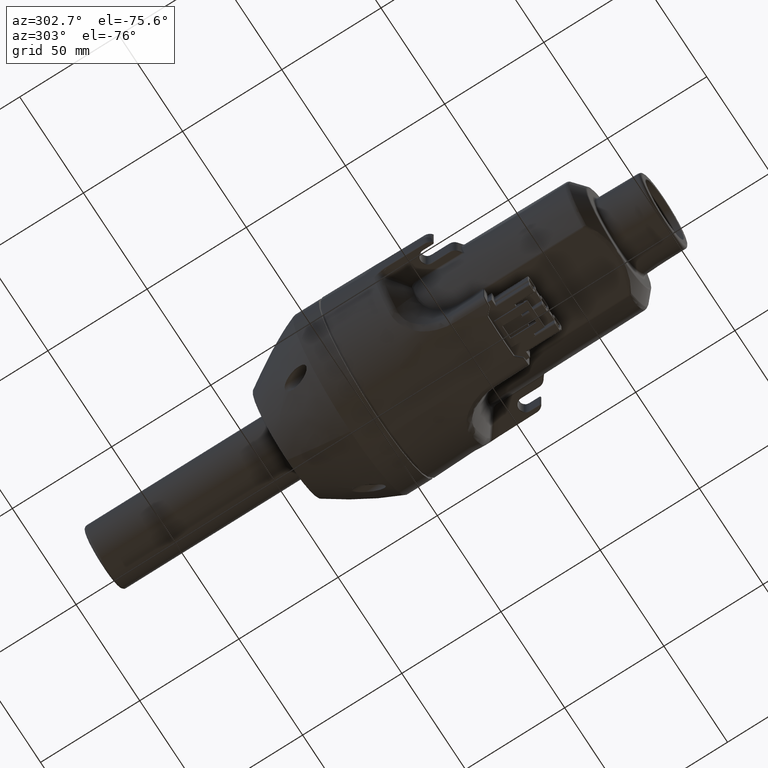
[diagram: clean part render]
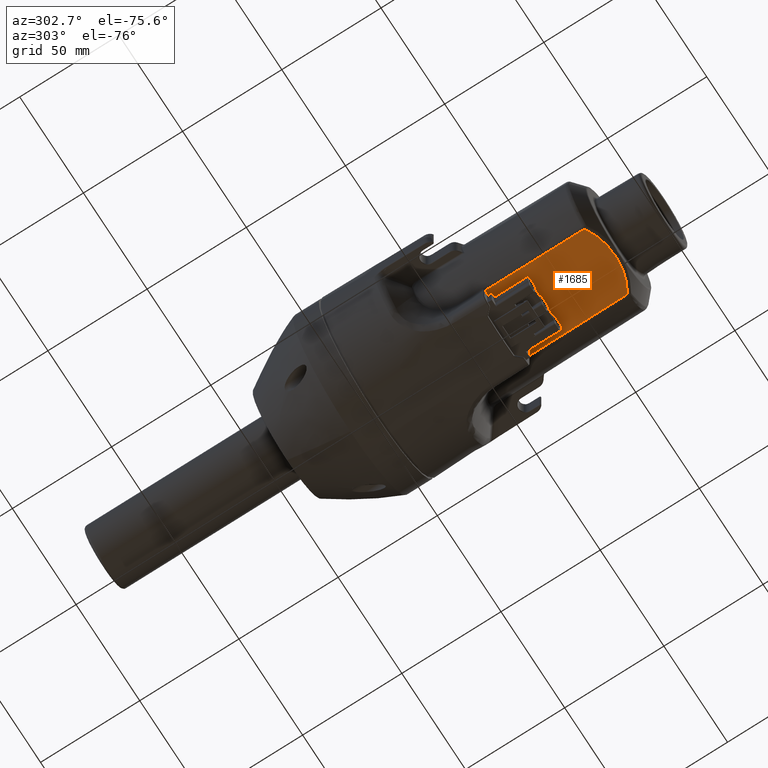
[diagram: same view with one face highlighted and labeled with its STEP entity id]
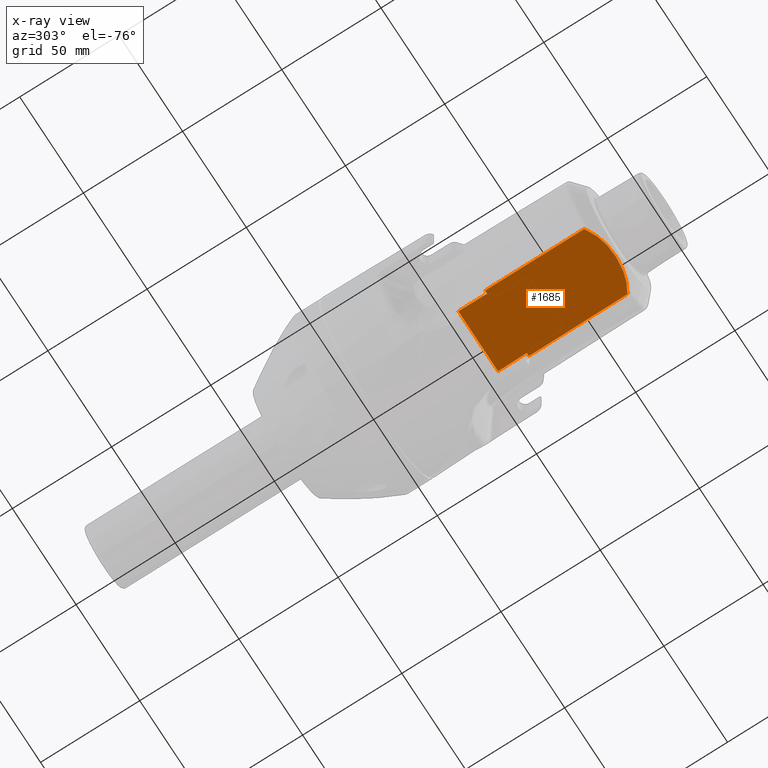
[diagram: x-ray of the same camera — body ghosted, the highlighted face saturated]
A machine part, auxiliary view. The second image highlights one B-rep face of the part: STEP entity #1685.
The next image is the same camera in x-ray: the body ghosted, the highlighted face saturated — about 0% of this face is hidden behind the body in this view.
In plain terms, the highlighted planar face has unit normal (0, -0.0087, -1).
Its self-contained STEP definition (entity closure, byte-faithful):
#1685 = ADVANCED_FACE( '', ( #3583 ), #3584, .T. );
#3583 = FACE_OUTER_BOUND( '', #9095, .T. );
#3584 = PLANE( '', #9096 );
#9095 = EDGE_LOOP( '', ( #15137, #15138, #15139, #15140, #15141, #15142, #15143, #15144, #15145, #15146 ) );
#9096 = AXIS2_PLACEMENT_3D( '', #15147, #15148, #15149 );
#15137 = ORIENTED_EDGE( '', *, *, #18684, .F. );
#15138 = ORIENTED_EDGE( '', *, *, #18685, .F. );
#15139 = ORIENTED_EDGE( '', *, *, #18686, .T. );
#15140 = ORIENTED_EDGE( '', *, *, #18142, .F. );
#15141 = ORIENTED_EDGE( '', *, *, #17085, .F. );
#15142 = ORIENTED_EDGE( '', *, *, #18498, .F. );
#15143 = ORIENTED_EDGE( '', *, *, #18687, .F. );
#15144 = ORIENTED_EDGE( '', *, *, #18272, .F. );
#15145 = ORIENTED_EDGE( '', *, *, #17591, .T. );
#15146 = ORIENTED_EDGE( '', *, *, #18541, .T. );
#15147 = CARTESIAN_POINT( '', ( 4.12001643034690E-011, -65.1999999999932, -26.9999999999682 ) );
#15148 = DIRECTION( '', ( 0.000000000000000, -0.00872653549837275, -0.999961923064171 ) );
#15149 = DIRECTION( '', ( 0.000000000000000, -0.999961923064171, 0.00872653549837275 ) );
#17085 = EDGE_CURVE( '', #19901, #19903, #19904, .T. );
#17591 = EDGE_CURVE( '', #20712, #20710, #20713, .T. );
#18142 = EDGE_CURVE( '', #19903, #21522, #21523, .T. );
#18272 = EDGE_CURVE( '', #20712, #21687, #21688, .T. );
#18498 = EDGE_CURVE( '', #21976, #19901, #21978, .T. );
#18541 = EDGE_CURVE( '', #20710, #22026, #22027, .T. );
#18684 = EDGE_CURVE( '', #22191, #22026, #22192, .T. );
#18685 = EDGE_CURVE( '', #22193, #22191, #22194, .T. );
#18686 = EDGE_CURVE( '', #22193, #21522, #22195, .T. );
#18687 = EDGE_CURVE( '', #21687, #21976, #22196, .T. );
#19901 = VERTEX_POINT( '', #24110 );
#19903 = VERTEX_POINT( '', #24112 );
#19904 = B_SPLINE_CURVE_WITH_KNOTS( '', 3, ( #24113, #24114, #24115, #24116, #24117, #24118, #24119, #24120, #24121, #24122 ), .UNSPECIFIED., .F., .F., ( 4, 1, 1, 1, 1, 1, 1, 4 ), ( 0.000000000000000, 0.250000000000000, 0.375000000000000, 0.500000000000000, 0.625000000000000, 0.687500000000000, 0.750000000000000, 0.999984380602608 ), .UNSPECIFIED. );
#20710 = VERTEX_POINT( '', #25761 );
#20712 = VERTEX_POINT( '', #25764 );
#20713 = LINE( '', #25765, #25766 );
#21522 = VERTEX_POINT( '', #27679 );
#21523 = B_SPLINE_CURVE_WITH_KNOTS( '', 3, ( #27680, #27681, #27682, #27683 ), .UNSPECIFIED., .F., .F., ( 4, 4 ), ( 0.000000000000000, 1.00000000000000 ), .UNSPECIFIED. );
#21687 = VERTEX_POINT( '', #28068 );
#21688 = B_SPLINE_CURVE_WITH_KNOTS( '', 3, ( #28069, #28070, #28071, #28072 ), .UNSPECIFIED., .F., .F., ( 4, 4 ), ( 0.000000000000000, 1.00000000000000 ), .UNSPECIFIED. );
#21976 = VERTEX_POINT( '', #28589 );
#21978 = B_SPLINE_CURVE_WITH_KNOTS( '', 3, ( #28597, #28598, #28599, #28600, #28601, #28602, #28603, #28604, #28605, #28606, #28607, #28608, #28609, #28610, #28611, #28612, #28613, #28614, #28615, #28616, #28617, #28618, #28619, #28620, #28621, #28622, #28623, #28624, #28625, #28626, #28627, #28628, #28629, #28630, #28631, #28632, #28633, #28634, #28635, #28636, #28637, #28638, #28639, #28640, #28641, #28642, #28643 ), .UNSPECIFIED., .F., .F., ( 4, 1, 1, 1, 1, 1, 1, 1, 1, 1, 1, 1, 1, 1, 1, 1, 1, 1, 1, 1, 1, 1, 1, 1, 1, 1, 1, 1, 1, 1, 1, 1, 1, 1, 1, 1, 1, 1, 1, 1, 1, 1, 1, 1, 4 ), ( 0.000000000000000, 0.0227272727272700, 0.0454545454545500, 0.0681818181818200, 0.0909090909090900, 0.113636363636400, 0.136363636363600, 0.159090909090900, 0.181818181818200, 0.204545454545500, 0.227272727272700, 0.250000000000000, 0.272727272727300, 0.295454545454500, 0.318181818181800, 0.340909090909100, 0.363636363636400, 0.386363636363600, 0.409090909090900, 0.431818181818200, 0.454545454545500, 0.477272727272700, 0.500000000000000, 0.522727272727300, 0.545454545454500, 0.568181818181800, 0.590909090909100, 0.613636363636400, 0.636363636363600, 0.659090909090900, 0.681818181818200, 0.704545454545500, 0.727272727272700, 0.750000000000000, 0.772727272727300, 0.795454545454500, 0.818181818181800, 0.840909090909100, 0.863636363636400, 0.886363636363600, 0.909090909090900, 0.931818181818200, 0.954545454545500, 0.977272727272700, 1.00000000000000 ), .UNSPECIFIED. );
#22026 = VERTEX_POINT( '', #28727 );
#22027 = LINE( '', #28728, #28729 );
#22191 = VERTEX_POINT( '', #29033 );
#22192 = LINE( '', #29034, #29035 );
#22193 = VERTEX_POINT( '', #29036 );
#22194 = LINE( '', #29037, #29038 );
#22195 = LINE( '', #29039, #29040 );
#22196 = B_SPLINE_CURVE_WITH_KNOTS( '', 3, ( #29041, #29042, #29043, #29044, #29045, #29046, #29047, #29048, #29049, #29050 ), .UNSPECIFIED., .F., .F., ( 4, 1, 1, 1, 1, 1, 1, 4 ), ( 1.56143924593366E-005, 0.250000000000000, 0.312500000000000, 0.375000000000000, 0.500000000000000, 0.625000000000000, 0.750000000000000, 1.00000000000000 ), .UNSPECIFIED. );
#24110 = CARTESIAN_POINT( '', ( 16.7270094719492, -117.189522202224, -26.5462943131980 ) );
#24112 = CARTESIAN_POINT( '', ( 16.9399724813894, -116.865618072970, -26.5491041563972 ) );
#24113 = CARTESIAN_POINT( '', ( 16.7270094719492, -117.189522202224, -26.5462943131980 ) );
#24114 = CARTESIAN_POINT( '', ( 16.7553626542140, -117.171025636754, -26.5464557302742 ) );
#24115 = CARTESIAN_POINT( '', ( 16.7956023017610, -117.140634775590, -26.5467209451108 ) );
#24116 = CARTESIAN_POINT( '', ( 16.8434427336542, -117.093327589737, -26.5471337945264 ) );
#24117 = CARTESIAN_POINT( '', ( 16.8757673947274, -117.053829879934, -26.5474784682084 ) );
#24118 = CARTESIAN_POINT( '', ( 16.8982079918019, -117.018378726605, -26.5477879007874 ) );
#24119 = CARTESIAN_POINT( '', ( 16.9132178016578, -116.988082617804, -26.5480521786180 ) );
#24120 = CARTESIAN_POINT( '', ( 16.9323524068368, -116.940719517909, -26.5484661961047 ) );
#24121 = CARTESIAN_POINT( '', ( 16.9399580496957, -116.899737363238, -26.5488176193495 ) );
#24122 = CARTESIAN_POINT( '', ( 16.9400515594910, -116.865618387563, -26.5491153705144 ) );
#25761 = CARTESIAN_POINT( '', ( -15.4999999999583, -67.2000000000106, -26.9825462643652 ) );
#25764 = CARTESIAN_POINT( '', ( -17.0745852037331, -67.2000000000106, -26.9825462643652 ) );
#25765 = CARTESIAN_POINT( '', ( -17.0745852037331, -67.2000000000106, -26.9825462643652 ) );
#25766 = VECTOR( '', #30807, 1000.00000000000 );
#27679 = CARTESIAN_POINT( '', ( 17.0745852038144, -67.2000000000106, -26.9825462643652 ) );
#27680 = CARTESIAN_POINT( '', ( 16.9400515598534, -116.865618287189, -26.5491041576569 ) );
#27681 = CARTESIAN_POINT( '', ( 16.9848961078229, -100.310412142534, -26.6935792532330 ) );
#27682 = CARTESIAN_POINT( '', ( 17.0297406557923, -83.7552059978780, -26.8380543486330 ) );
#27683 = CARTESIAN_POINT( '', ( 17.0745852037618, -67.1999998532201, -26.9825294438569 ) );
#28068 = CARTESIAN_POINT( '', ( -16.9400910986781, -116.865618394255, -26.5491041571084 ) );
#28069 = CARTESIAN_POINT( '', ( -17.0745852036790, -67.1999998532201, -26.9825294438569 ) );
#28070 = CARTESIAN_POINT( '', ( -17.0297538353454, -83.7552060335654, -26.8380543482792 ) );
#28071 = CARTESIAN_POINT( '', ( -16.9849224670117, -100.310412213911, -26.6935792526980 ) );
#28072 = CARTESIAN_POINT( '', ( -16.9400910986780, -116.865618394256, -26.5491041571133 ) );
#28589 = CARTESIAN_POINT( '', ( -16.7270233731533, -117.189543509776, -26.5462941267620 ) );
#28597 = CARTESIAN_POINT( '', ( -16.7270233731533, -117.189543509776, -26.5462941267620 ) );
#28598 = CARTESIAN_POINT( '', ( -16.5096679239687, -117.331338081025, -26.5450567042940 ) );
#28599 = CARTESIAN_POINT( '', ( -16.0514990390027, -117.620843899980, -26.5425302259840 ) );
#28600 = CARTESIAN_POINT( '', ( -15.2735684625048, -118.076446676581, -26.5385542405146 ) );
#28601 = CARTESIAN_POINT( '', ( -14.4507736057178, -118.519548242294, -26.5346873518044 ) );
#28602 = CARTESIAN_POINT( '', ( -13.6152650738350, -118.932151169055, -26.5310866206010 ) );
#28603 = CARTESIAN_POINT( '', ( -12.8050747424866, -119.298522971057, -26.5278893423118 ) );
#28604 = CARTESIAN_POINT( '', ( -12.0632487264744, -119.607118974133, -26.5251962657828 ) );
#28605 = CARTESIAN_POINT( '', ( -11.3750718721374, -119.872042445733, -26.5228843136884 ) );
#28606 = CARTESIAN_POINT( '', ( -10.7189998721301, -120.106337994794, -26.5208396473942 ) );
#28607 = CARTESIAN_POINT( '', ( -10.0714476115857, -120.320834129428, -26.5189677680036 ) );
#28608 = CARTESIAN_POINT( '', ( -9.42028768889926, -120.520238004965, -26.5172275967316 ) );
#28609 = CARTESIAN_POINT( '', ( -8.76096200138360, -120.706066678087, -26.5156058944632 ) );
#28610 = CARTESIAN_POINT( '', ( -8.09902090773224, -120.876821163273, -26.5141157426556 ) );
#28611 = CARTESIAN_POINT( '', ( -7.44927815714922, -121.029720042997, -26.5127814143362 ) );
#28612 = CARTESIAN_POINT( '', ( -6.77077957320676, -121.174546114990, -26.5115175363712 ) );
#28613 = CARTESIAN_POINT( '', ( -6.02320827185756, -121.317069063675, -26.5102737574262 ) );
#28614 = CARTESIAN_POINT( '', ( -5.15361408593384, -121.460860462833, -26.5090189089072 ) );
#28615 = CARTESIAN_POINT( '', ( -4.16028618490756, -121.595949236571, -26.5078400070486 ) );
#28616 = CARTESIAN_POINT( '', ( -3.14371118322292, -121.702397534444, -26.5069110468034 ) );
#28617 = CARTESIAN_POINT( '', ( -2.20460444062254, -121.773233041922, -26.5062928747098 ) );
#28618 = CARTESIAN_POINT( '', ( -1.35818565851047, -121.815565511257, -26.5059234448416 ) );
#28619 = CARTESIAN_POINT( '', ( -0.564401588309374, -121.836953037494, -26.5057367987328 ) );
#28620 = CARTESIAN_POINT( '', ( 0.206125853168703, -121.840804047191, -26.5057031914848 ) );
#28621 = CARTESIAN_POINT( '', ( 0.978498985481986, -121.827837867561, -26.5058163456146 ) );
#28622 = CARTESIAN_POINT( '', ( 1.74885054302928, -121.797970622545, -26.5060769930994 ) );
#28623 = CARTESIAN_POINT( '', ( 2.51944854240653, -121.751074407169, -26.5064862501930 ) );
#28624 = CARTESIAN_POINT( '', ( 3.28827320923418, -121.687233636425, -26.5070433801430 ) );
#28625 = CARTESIAN_POINT( '', ( 4.07709172120030, -121.603849248483, -26.5077710646668 ) );
#28626 = CARTESIAN_POINT( '', ( 4.91463462403850, -121.495317019497, -26.5087182110834 ) );
#28627 = CARTESIAN_POINT( '', ( 5.84020530566966, -121.350600094022, -26.5099811365738 ) );
#28628 = CARTESIAN_POINT( '', ( 6.83180206583260, -121.164880669322, -26.5116018854278 ) );
#28629 = CARTESIAN_POINT( '', ( 7.79325666023478, -120.952824957976, -26.5134524675788 ) );
#28630 = CARTESIAN_POINT( '', ( 8.62887960216818, -120.742273748650, -26.5152899201650 ) );
#28631 = CARTESIAN_POINT( '', ( 9.34583883314144, -120.542179582062, -26.5170361155042 ) );
#28632 = CARTESIAN_POINT( '', ( 9.99940294607918, -120.343594461784, -26.5187691415784 ) );
#28633 = CARTESIAN_POINT( '', ( 10.6363670763953, -120.134585160296, -26.5205931381336 ) );
#28634 = CARTESIAN_POINT( '', ( 11.2856778494348, -119.904853619709, -26.5225979749164 ) );
#28635 = CARTESIAN_POINT( '', ( 11.9257227962766, -119.661029320033, -26.5247257973308 ) );
#28636 = CARTESIAN_POINT( '', ( 12.5568455137772, -119.403231453588, -26.5269755652214 ) );
#28637 = CARTESIAN_POINT( '', ( 13.1889906032741, -119.126901267514, -26.5293870622272 ) );
#28638 = CARTESIAN_POINT( '', ( 13.8329121707701, -118.825868573670, -26.5320141347480 ) );
#28639 = CARTESIAN_POINT( '', ( 14.4988858409841, -118.492602541169, -26.5349225033534 ) );
#28640 = CARTESIAN_POINT( '', ( 15.1966472924994, -118.118074073946, -26.5381909637710 ) );
#28641 = CARTESIAN_POINT( '', ( 15.9334884375949, -117.692545482536, -26.5419044955362 ) );
#28642 = CARTESIAN_POINT( '', ( 16.4580278187604, -117.364995779394, -26.5447629784908 ) );
#28643 = CARTESIAN_POINT( '', ( 16.7270094719492, -117.189522202224, -26.5462943131980 ) );
#28727 = CARTESIAN_POINT( '', ( -15.6265395829239, -52.6999999999924, -27.1090858473536 ) );
#28728 = CARTESIAN_POINT( '', ( -15.4999999999583, -67.2000000000106, -26.9825462643652 ) );
#28729 = VECTOR( '', #31817, 999.999999999999 );
#29033 = CARTESIAN_POINT( '', ( 15.6265395830077, -52.6999999999924, -27.1090858473536 ) );
#29034 = CARTESIAN_POINT( '', ( 15.6265395830077, -52.6999999999924, -27.1090858473536 ) );
#29035 = VECTOR( '', #31936, 1000.00000000000 );
#29036 = CARTESIAN_POINT( '', ( 15.5000000000421, -67.2000000000106, -26.9825462643652 ) );
#29037 = CARTESIAN_POINT( '', ( 15.5000000000421, -67.2000000000106, -26.9825462643652 ) );
#29038 = VECTOR( '', #31937, 999.999999999999 );
#29039 = CARTESIAN_POINT( '', ( 15.5000000000421, -67.2000000000106, -26.9825462643652 ) );
#29040 = VECTOR( '', #31938, 1000.00000000000 );
#29041 = CARTESIAN_POINT( '', ( -16.9400910985381, -116.865618492114, -26.5491153707943 ) );
#29042 = CARTESIAN_POINT( '', ( -16.9399975964980, -116.899732576853, -26.5488176623033 ) );
#29043 = CARTESIAN_POINT( '', ( -16.9323338090688, -116.940812155356, -26.5484653875289 ) );
#29044 = CARTESIAN_POINT( '', ( -16.9131471449893, -116.988238973829, -26.5480508141300 ) );
#29045 = CARTESIAN_POINT( '', ( -16.8981651696194, -117.018445813923, -26.5477873153174 ) );
#29046 = CARTESIAN_POINT( '', ( -16.8757295134875, -117.053883422677, -26.5474780009500 ) );
#29047 = CARTESIAN_POINT( '', ( -16.8433962778899, -117.093378558571, -26.5471333497216 ) );
#29048 = CARTESIAN_POINT( '', ( -16.7955833328860, -117.140640107431, -26.5467208986796 ) );
#29049 = CARTESIAN_POINT( '', ( -16.7553704544575, -117.171050924359, -26.5464555091164 ) );
#29050 = CARTESIAN_POINT( '', ( -16.7270233731533, -117.189543509776, -26.5462941267620 ) );
#30807 = DIRECTION( '', ( 1.00000000000000, 0.000000000000000, 0.000000000000000 ) );
#31817 = DIRECTION( '', ( -0.00872620324394675, 0.999923850477570, -0.00872620324394375 ) );
#31936 = DIRECTION( '', ( -1.00000000000000, 0.000000000000000, 0.000000000000000 ) );
#31937 = DIRECTION( '', ( 0.00872620324394175, 0.999923850477570, -0.00872620324394375 ) );
#31938 = DIRECTION( '', ( 1.00000000000000, 0.000000000000000, 0.000000000000000 ) );